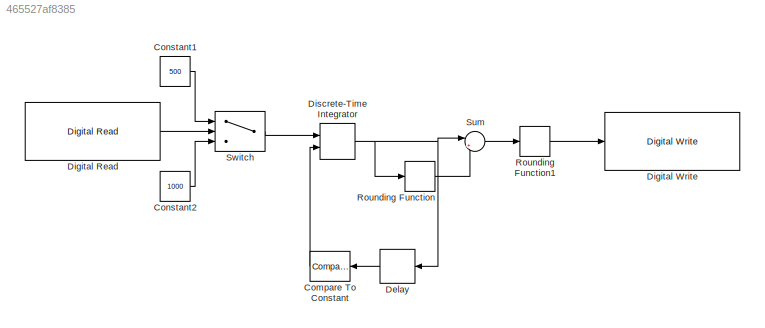
MODEL slx_465527af8385
KIND model
CONFIG AbsTol = auto
CONFIG EnableMultiTasking = on
CONFIG FixedStep = auto
CONFIG MaxStep = auto
CONFIG MinStep = auto
CONFIG RelTol = 1e-3
CONFIG SampleTimeConstraint = Unconstrained
CONFIG SolverName = FixedStepAuto
CONFIG StartTime = 0.0
CONFIG StopTime = 250
WORKSPACE source: mxarray member
WORKSPACE T = 1
BLOCK [Reference] Compare To Constant  REF=simulink/Logic and Bit
Operations/Compare
To Constant
  Ports = [1, 1]
  SourceBlock = simulink/Logic and Bit\nOperations/Compare\nTo Constant
  SourceProductBaseCode = SL
  SourceType = Compare To Constant
BLOCK [Constant] Constant1
  Value = 500
BLOCK [Constant] Constant2
  Value = 1000
BLOCK [Delay] Delay
  DelayLength = 1
  InputPortMap = u0
  Ports = [1, 1]
BLOCK [Reference] Digital Read  REF=bbblueBasicLib/Digital Read
  Ports = [0, 1]
  SourceBlock = bbblueBasicLib/Digital Read
  SourceProductBaseCode = SC_BEAGLEBONE_BLUE
  SourceType = beagleboneblue.bbblueDigitalRead
BLOCK [Reference] Digital Write  REF=bbblueBasicLib/Digital Write
  Ports = [1]
  SourceBlock = bbblueBasicLib/Digital Write
  SourceProductBaseCode = SC_BEAGLEBONE_BLUE
  SourceType = beagleboneblue.bbblueDigitalWrite
BLOCK [DiscreteIntegrator] Discrete-Time Integrator
  ExternalReset = rising
  ICPrevOutput = DiscIntNeverNeededParam
  ICPrevScaledInput = DiscIntNeverNeededParam
  InitialConditionSetting = Auto
  Ports = [2, 1]
  SampleTime = 1/5000
BLOCK [Rounding] Rounding Function
BLOCK [Rounding] Rounding Function1
  Operator = round
BLOCK [Sum] Sum
  Inputs = |+-
  Ports = [2, 1]
BLOCK [Switch] Switch
  Criteria = u2 > Threshold
  InputSameDT = off
  SaturateOnIntegerOverflow = off
  Threshold = 1.5
LINE Compare To Constant:1 -> Discrete-Time Integrator:2
LINE Constant1:1 -> Switch:1
LINE Constant2:1 -> Switch:3
LINE Delay:1 -> Compare To Constant:1
LINE Digital Read:1 -> Switch:2
NET Discrete-Time Integrator:1 -> Delay:1, Rounding Function:1, Sum:1
LINE Rounding Function1:1 -> Digital Write:1
LINE Rounding Function:1 -> Sum:2
LINE Sum:1 -> Rounding Function1:1
LINE Switch:1 -> Discrete-Time Integrator:1
note: NET lines group one-source signal fan-out (src -> all destinations, sorted); 1:1 wires keep LINE
